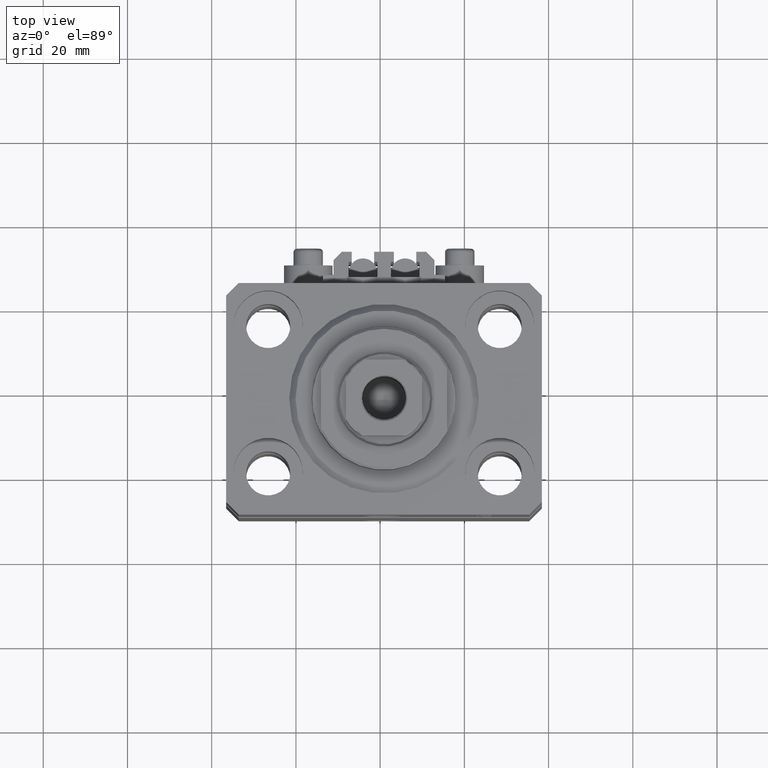
[diagram: clean part render]
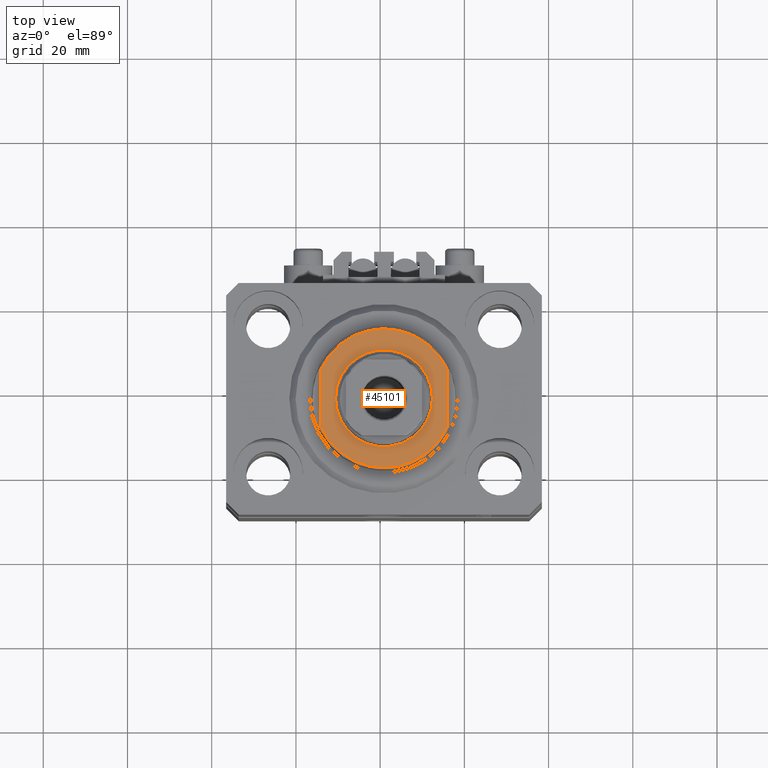
[diagram: same view with one face highlighted and labeled with its STEP entity id]
A machine part, top view. The second image highlights one B-rep face of the part: STEP entity #45101.
In plain terms, the highlighted planar face has unit normal (0, 0, 1).
Its self-contained STEP definition (entity closure, byte-faithful):
#594 = VERTEX_POINT ( 'NONE', #40825 ) ;
#666 = VERTEX_POINT ( 'NONE', #40337 ) ;
#1323 = EDGE_CURVE ( 'NONE', #7435, #28815, #10495, .T. ) ;
#4134 = DIRECTION ( 'NONE',  ( -1.000000000000000000, 0.000000000000000000, 0.000000000000000000 ) ) ;
#4385 = EDGE_CURVE ( 'NONE', #28815, #666, #35189, .T. ) ;
#6901 = VECTOR ( 'NONE', #20401, 1000.000000000000000 ) ;
#7326 = CARTESIAN_POINT ( 'NONE',  ( 0.000000000000000000, 0.000000000000000000, -8.000000000000000000 ) ) ;
#7435 = VERTEX_POINT ( 'NONE', #7510 ) ;
#7510 = CARTESIAN_POINT ( 'NONE',  ( 14.99999999999999645, 6.873863542433765517, -8.000000000000000000 ) ) ;
#7795 = CARTESIAN_POINT ( 'NONE',  ( 0.000000000000000000, 0.000000000000000000, -8.000000000000000000 ) ) ;
#7882 = AXIS2_PLACEMENT_3D ( 'NONE', #20751, #42456, #12474 ) ;
#7969 = DIRECTION ( 'NONE',  ( -1.000000000000000000, 0.000000000000000000, 0.000000000000000000 ) ) ;
#8480 = CARTESIAN_POINT ( 'NONE',  ( -15.00000000000000000, -42.42640687119285303, -8.000000000000000000 ) ) ;
#9056 = ORIENTED_EDGE ( 'NONE', *, *, #33019, .T. ) ;
#10495 = LINE ( 'NONE', #24657, #46780 ) ;
#10965 = PLANE ( 'NONE',  #23011 ) ;
#12474 = DIRECTION ( 'NONE',  ( -1.000000000000000000, 0.000000000000000000, 0.000000000000000000 ) ) ;
#12755 = DIRECTION ( 'NONE',  ( -0.000000000000000000, -0.000000000000000000, 1.000000000000000000 ) ) ;
#13371 = AXIS2_PLACEMENT_3D ( 'NONE', #45479, #12755, #7969 ) ;
#16781 = DIRECTION ( 'NONE',  ( -1.000000000000000000, 0.000000000000000000, 0.000000000000000000 ) ) ;
#19003 = ORIENTED_EDGE ( 'NONE', *, *, #24039, .F. ) ;
#19092 = CIRCLE ( 'NONE', #46333, 16.50000000000000000 ) ;
#19158 = ORIENTED_EDGE ( 'NONE', *, *, #4385, .T. ) ;
#20206 = DIRECTION ( 'NONE',  ( 0.000000000000000000, 0.000000000000000000, -1.000000000000000000 ) ) ;
#20401 = DIRECTION ( 'NONE',  ( -0.000000000000000000, -1.000000000000000000, -0.000000000000000000 ) ) ;
#20751 = CARTESIAN_POINT ( 'NONE',  ( 0.000000000000000000, 0.000000000000000000, -8.000000000000000000 ) ) ;
#21589 = VERTEX_POINT ( 'NONE', #28164 ) ;
#21702 = DIRECTION ( 'NONE',  ( 0.000000000000000000, -1.000000000000000000, -0.000000000000000000 ) ) ;
#22177 = DIRECTION ( 'NONE',  ( -1.000000000000000000, 0.000000000000000000, -0.000000000000000000 ) ) ;
#22581 = EDGE_LOOP ( 'NONE', ( #23636, #9056 ) ) ;
#22648 = DIRECTION ( 'NONE',  ( 0.000000000000000000, 0.000000000000000000, -1.000000000000000000 ) ) ;
#23011 = AXIS2_PLACEMENT_3D ( 'NONE', #7326, #40691, #22177 ) ;
#23497 = CIRCLE ( 'NONE', #13371, 11.50000000000000355 ) ;
#23636 = ORIENTED_EDGE ( 'NONE', *, *, #31113, .T. ) ;
#24039 = EDGE_CURVE ( 'NONE', #21589, #666, #41863, .T. ) ;
#24657 = CARTESIAN_POINT ( 'NONE',  ( 15.00000000000000000, -42.42640687119285303, -8.000000000000000000 ) ) ;
#28164 = CARTESIAN_POINT ( 'NONE',  ( -14.99999999999999645, 6.873863542433765517, -8.000000000000000000 ) ) ;
#28815 = VERTEX_POINT ( 'NONE', #29466 ) ;
#29169 = VERTEX_POINT ( 'NONE', #31558 ) ;
#29466 = CARTESIAN_POINT ( 'NONE',  ( 14.99999999999999645, -6.873863542433765517, -8.000000000000000000 ) ) ;
#31113 = EDGE_CURVE ( 'NONE', #594, #29169, #23497, .T. ) ;
#31558 = CARTESIAN_POINT ( 'NONE',  ( 11.50000000000000355, 1.408343819019456570E-15, -8.000000000000000000 ) ) ;
#32694 = ORIENTED_EDGE ( 'NONE', *, *, #1323, .T. ) ;
#32901 = FACE_OUTER_BOUND ( 'NONE', #38724, .T. ) ;
#33019 = EDGE_CURVE ( 'NONE', #29169, #594, #38230, .T. ) ;
#34827 = CARTESIAN_POINT ( 'NONE',  ( 0.000000000000000000, 0.000000000000000000, -8.000000000000000000 ) ) ;
#35189 = CIRCLE ( 'NONE', #38318, 16.50000000000000000 ) ;
#37021 = ORIENTED_EDGE ( 'NONE', *, *, #40222, .T. ) ;
#38230 = CIRCLE ( 'NONE', #7882, 11.50000000000000355 ) ;
#38318 = AXIS2_PLACEMENT_3D ( 'NONE', #34827, #20206, #16781 ) ;
#38724 = EDGE_LOOP ( 'NONE', ( #37021, #32694, #19158, #19003 ) ) ;
#39965 = FACE_BOUND ( 'NONE', #22581, .T. ) ;
#40222 = EDGE_CURVE ( 'NONE', #21589, #7435, #19092, .T. ) ;
#40337 = CARTESIAN_POINT ( 'NONE',  ( -14.99999999999999645, -6.873863542433765517, -8.000000000000000000 ) ) ;
#40691 = DIRECTION ( 'NONE',  ( 0.000000000000000000, 0.000000000000000000, -1.000000000000000000 ) ) ;
#40825 = CARTESIAN_POINT ( 'NONE',  ( -11.50000000000000355, 0.000000000000000000, -8.000000000000000000 ) ) ;
#41863 = LINE ( 'NONE', #8480, #6901 ) ;
#42456 = DIRECTION ( 'NONE',  ( -0.000000000000000000, -0.000000000000000000, 1.000000000000000000 ) ) ;
#45101 = ADVANCED_FACE ( 'NONE', ( #39965, #32901 ), #10965, .T. ) ;
#45479 = CARTESIAN_POINT ( 'NONE',  ( 0.000000000000000000, 0.000000000000000000, -8.000000000000000000 ) ) ;
#46333 = AXIS2_PLACEMENT_3D ( 'NONE', #7795, #22648, #4134 ) ;
#46780 = VECTOR ( 'NONE', #21702, 1000.000000000000000 ) ;